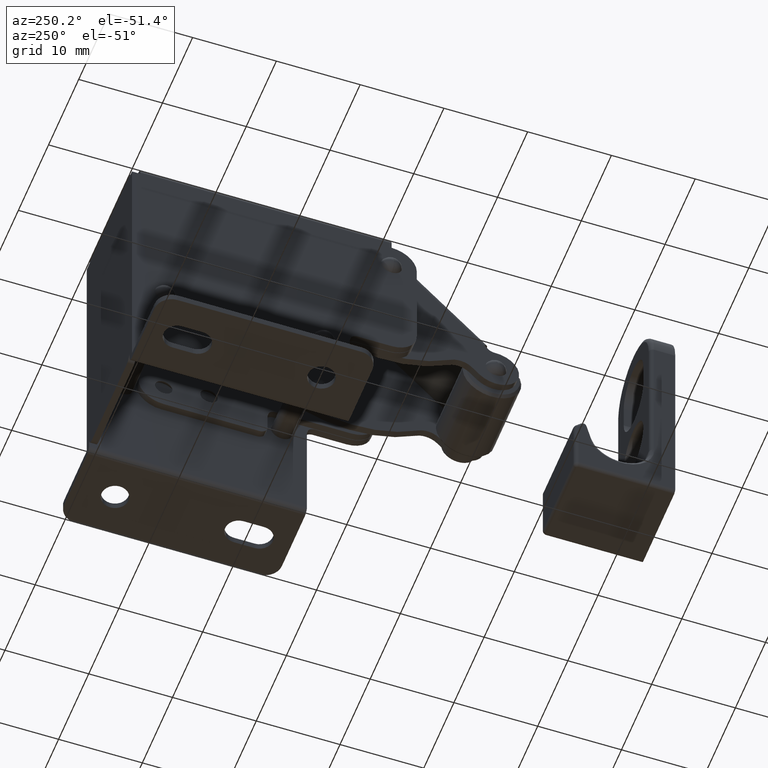
[diagram: clean part render]
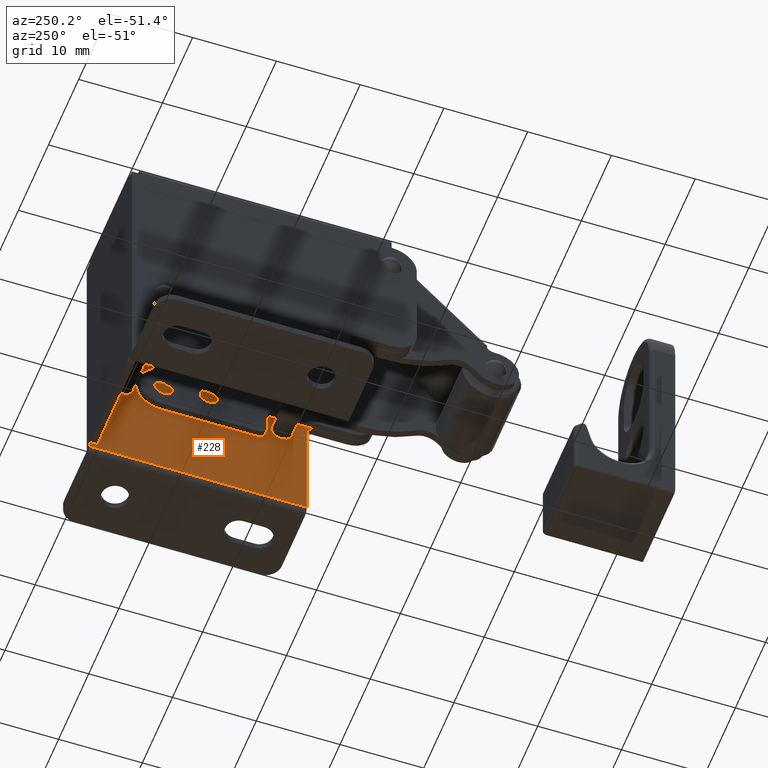
[diagram: same view with one face highlighted and labeled with its STEP entity id]
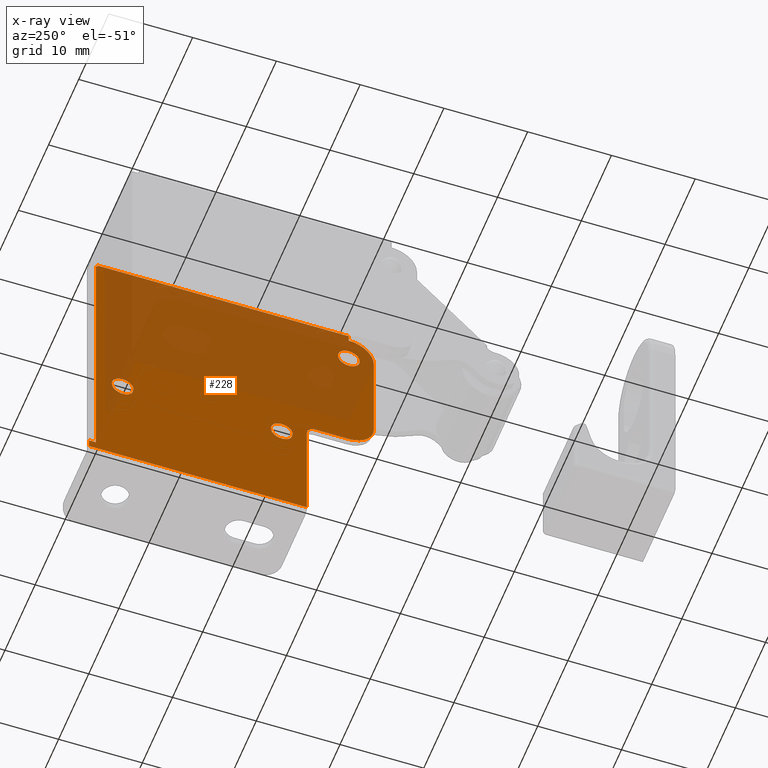
[diagram: x-ray of the same camera — body ghosted, the highlighted face saturated]
A machine part, auxiliary view. The second image highlights one B-rep face of the part: STEP entity #228.
The next image is the same camera in x-ray: the body ghosted, the highlighted face saturated — about 51% of this face is hidden behind the body in this view.
In plain terms, the highlighted planar face has unit normal (1, 0, 0).
Its self-contained STEP definition (entity closure, byte-faithful):
#228=ADVANCED_FACE('',(#567,#568,#569,#570),#566,.F.);
#566=PLANE('',#3448);
#567=FACE_OUTER_BOUND('',#3449,.T.);
#568=FACE_BOUND('',#3450,.T.);
#569=FACE_BOUND('',#3451,.T.);
#570=FACE_BOUND('',#3452,.T.);
#3445=CARTESIAN_POINT('',(6.70000000000E+00,-6.40000000000E+00,7.29000000000E+00));
#3446=DIRECTION('',(1.00000000000E+00,-0.00000000000E+00,0.00000000000E+00));
#3447=DIRECTION('',(0.00000000000E+00,0.00000000000E+00,-1.00000000000E+00));
#3448=AXIS2_PLACEMENT_3D('',#3445,#3446,#3447);
#3449=EDGE_LOOP('',(#5110,#5111,#5112,#5113,#5114,#5115,#5116,#5117,#5118,#5119,#5120,#5121,#5122,#5123));
#3450=EDGE_LOOP('',(#5124,#5125));
#3451=EDGE_LOOP('',(#5126,#5127));
#3452=EDGE_LOOP('',(#5128,#5129));
#5110=ORIENTED_EDGE('',*,*,#6554,.F.);
#5111=ORIENTED_EDGE('',*,*,#6555,.F.);
#5112=ORIENTED_EDGE('',*,*,#6556,.T.);
#5113=ORIENTED_EDGE('',*,*,#6557,.T.);
#5114=ORIENTED_EDGE('',*,*,#6558,.T.);
#5115=ORIENTED_EDGE('',*,*,#6559,.T.);
#5116=ORIENTED_EDGE('',*,*,#6560,.T.);
#5117=ORIENTED_EDGE('',*,*,#6561,.T.);
#5118=ORIENTED_EDGE('',*,*,#6562,.T.);
#5119=ORIENTED_EDGE('',*,*,#6563,.F.);
#5120=ORIENTED_EDGE('',*,*,#6564,.F.);
#5121=ORIENTED_EDGE('',*,*,#6565,.F.);
#5122=ORIENTED_EDGE('',*,*,#6566,.T.);
#5123=ORIENTED_EDGE('',*,*,#6567,.F.);
#5124=ORIENTED_EDGE('',*,*,#6568,.T.);
#5125=ORIENTED_EDGE('',*,*,#6569,.T.);
#5126=ORIENTED_EDGE('',*,*,#6570,.T.);
#5127=ORIENTED_EDGE('',*,*,#6571,.T.);
#5128=ORIENTED_EDGE('',*,*,#6572,.T.);
#5129=ORIENTED_EDGE('',*,*,#6573,.T.);
#6554=EDGE_CURVE('',#7576,#7577,#7578,.T.);
#6555=EDGE_CURVE('',#7584,#7576,#7585,.T.);
#6556=EDGE_CURVE('',#7584,#7591,#7592,.T.);
#6557=EDGE_CURVE('',#7591,#7598,#7599,.T.);
#6558=EDGE_CURVE('',#7598,#7605,#7606,.T.);
#6559=EDGE_CURVE('',#7605,#7612,#7613,.T.);
#6560=EDGE_CURVE('',#7612,#7619,#7620,.T.);
#6561=EDGE_CURVE('',#7619,#7626,#7627,.T.);
#6562=EDGE_CURVE('',#7626,#7633,#7634,.T.);
#6563=EDGE_CURVE('',#7640,#7633,#7641,.T.);
#6564=EDGE_CURVE('',#7647,#7640,#7648,.T.);
#6565=EDGE_CURVE('',#7654,#7647,#7655,.T.);
#6566=EDGE_CURVE('',#7654,#7661,#7662,.T.);
#6567=EDGE_CURVE('',#7577,#7661,#7668,.T.);
#6568=EDGE_CURVE('',#7674,#7675,#7676,.T.);
#6569=EDGE_CURVE('',#7675,#7674,#7682,.T.);
#6570=EDGE_CURVE('',#7688,#7689,#7690,.T.);
#6571=EDGE_CURVE('',#7689,#7688,#7696,.T.);
#6572=EDGE_CURVE('',#7702,#7703,#7704,.T.);
#6573=EDGE_CURVE('',#7703,#7702,#7710,.T.);
#7576=VERTEX_POINT('',#12251);
#7577=VERTEX_POINT('',#12252);
#7578=LINE('',#12253,#12254);
#7584=VERTEX_POINT('',#12256);
#7585=LINE('',#12257,#12258);
#7591=VERTEX_POINT('',#12260);
#7592=LINE('',#12261,#12262);
#7598=VERTEX_POINT('',#12264);
#7599=LINE('',#12265,#12266);
#7605=VERTEX_POINT('',#12268);
#7606=LINE('',#12269,#12270);
#7612=VERTEX_POINT('',#12272);
#7613=LINE('',#12273,#12274);
#7619=VERTEX_POINT('',#12276);
#7620=CIRCLE('',#12280,1.00000000000E+00);
#7626=VERTEX_POINT('',#12281);
#7627=LINE('',#12282,#12283);
#7633=VERTEX_POINT('',#12285);
#7634=CIRCLE('',#12289,3.00000000000E+00);
#7640=VERTEX_POINT('',#12290);
#7641=LINE('',#12291,#12292);
#7647=VERTEX_POINT('',#12294);
#7648=CIRCLE('',#12298,3.00000000000E+00);
#7654=VERTEX_POINT('',#12299);
#7655=LINE('',#12300,#12301);
#7661=VERTEX_POINT('',#12303);
#7662=LINE('',#12304,#12305);
#7668=LINE('',#12307,#12308);
#7674=VERTEX_POINT('',#12310);
#7675=VERTEX_POINT('',#12311);
#7676=CIRCLE('',#12315,1.30000000000E+00);
#7682=CIRCLE('',#12319,1.30000000000E+00);
#7688=VERTEX_POINT('',#12320);
#7689=VERTEX_POINT('',#12321);
#7690=CIRCLE('',#12325,1.30000000000E+00);
#7696=CIRCLE('',#12329,1.30000000000E+00);
#7702=VERTEX_POINT('',#12330);
#7703=VERTEX_POINT('',#12331);
#7704=CIRCLE('',#12335,1.30000000000E+00);
#7710=CIRCLE('',#12339,1.30000000000E+00);
#12251=CARTESIAN_POINT('',(6.70000000000E+00,3.02000000000E+01,3.80000000000E+00));
#12252=CARTESIAN_POINT('',(6.70000000000E+00,3.00000000000E+01,3.80000000000E+00));
#12253=CARTESIAN_POINT('',(6.70000000000E+00,3.02000000000E+01,3.80000000000E+00));
#12254=VECTOR('',#12255,2.00000000000E-01);
#12255=DIRECTION('',(0.00000000000E+00,-1.00000000000E+00,0.00000000000E+00));
#12256=CARTESIAN_POINT('',(6.70000000000E+00,3.02000000000E+01,-2.79000000000E+01));
#12257=CARTESIAN_POINT('',(6.70000000000E+00,3.02000000000E+01,-2.79000000000E+01));
#12258=VECTOR('',#12259,3.17000000000E+01);
#12259=DIRECTION('',(0.00000000000E+00,0.00000000000E+00,1.00000000000E+00));
#12260=CARTESIAN_POINT('',(6.70000000000E+00,3.10000000000E+01,-2.79000000000E+01));
#12261=CARTESIAN_POINT('',(6.70000000000E+00,3.02000000000E+01,-2.79000000000E+01));
#12262=VECTOR('',#12263,8.00000000000E-01);
#12263=DIRECTION('',(0.00000000000E+00,1.00000000000E+00,0.00000000000E+00));
#12264=CARTESIAN_POINT('',(6.70000000000E+00,3.10000000000E+01,-2.89000000000E+01));
#12265=CARTESIAN_POINT('',(6.70000000000E+00,3.10000000000E+01,-2.79000000000E+01));
#12266=VECTOR('',#12267,1.00000000000E+00);
#12267=DIRECTION('',(0.00000000000E+00,0.00000000000E+00,-1.00000000000E+00));
#12268=CARTESIAN_POINT('',(6.70000000000E+00,5.00000000000E+00,-2.89000000000E+01));
#12269=CARTESIAN_POINT('',(6.70000000000E+00,3.10000000000E+01,-2.89000000000E+01));
#12270=VECTOR('',#12271,2.60000000000E+01);
#12271=DIRECTION('',(0.00000000000E+00,-1.00000000000E+00,0.00000000000E+00));
#12272=CARTESIAN_POINT('',(6.70000000000E+00,5.00000000000E+00,-1.55000000000E+01));
#12273=CARTESIAN_POINT('',(6.70000000000E+00,5.00000000000E+00,-2.89000000000E+01));
#12274=VECTOR('',#12275,1.34000000000E+01);
#12275=DIRECTION('',(0.00000000000E+00,0.00000000000E+00,1.00000000000E+00));
#12276=CARTESIAN_POINT('',(6.70000000000E+00,4.00000000000E+00,-1.45000000000E+01));
#12277=CARTESIAN_POINT('',(6.70000000000E+00,4.00000000000E+00,-1.55000000000E+01));
#12278=DIRECTION('',(1.00000000000E+00,0.00000000000E+00,0.00000000000E+00));
#12279=DIRECTION('',(-0.00000000000E+00,-0.00000000000E+00,1.00000000000E+00));
#12280=AXIS2_PLACEMENT_3D('',#12277,#12278,#12279);
#12281=CARTESIAN_POINT('',(6.70000000000E+00,0.00000000000E+00,-1.45000000000E+01));
#12282=CARTESIAN_POINT('',(6.70000000000E+00,4.00000000000E+00,-1.45000000000E+01));
#12283=VECTOR('',#12284,4.00000000000E+00);
#12284=DIRECTION('',(0.00000000000E+00,-1.00000000000E+00,0.00000000000E+00));
#12285=CARTESIAN_POINT('',(6.70000000000E+00,-3.00000000000E+00,-1.15000000000E+01));
#12286=CARTESIAN_POINT('',(6.70000000000E+00,-2.60208521397E-15,-1.15000000000E+01));
#12287=DIRECTION('',(-1.00000000000E+00,0.00000000000E+00,-0.00000000000E+00));
#12288=DIRECTION('',(-0.00000000000E+00,-0.00000000000E+00,1.00000000000E+00));
#12289=AXIS2_PLACEMENT_3D('',#12286,#12287,#12288);
#12290=CARTESIAN_POINT('',(6.70000000000E+00,-3.00000000000E+00,2.00000000000E-01));
#12291=CARTESIAN_POINT('',(6.70000000000E+00,-3.00000000000E+00,2.00000000000E-01));
#12292=VECTOR('',#12293,1.17000000000E+01);
#12293=DIRECTION('',(0.00000000000E+00,0.00000000000E+00,-1.00000000000E+00));
#12294=CARTESIAN_POINT('',(6.70000000000E+00,5.11590769747E-13,3.20000000000E+00));
#12295=CARTESIAN_POINT('',(6.70000000000E+00,0.00000000000E+00,2.00000000000E-01));
#12296=DIRECTION('',(1.00000000000E+00,0.00000000000E+00,0.00000000000E+00));
#12297=DIRECTION('',(-0.00000000000E+00,1.70530256582E-13,1.00000000000E+00));
#12298=AXIS2_PLACEMENT_3D('',#12295,#12296,#12297);
#12299=CARTESIAN_POINT('',(6.70000000000E+00,1.22124532709E-12,4.00000000000E+00));
#12300=CARTESIAN_POINT('',(6.70000000000E+00,1.22124532773E-12,4.00000000000E+00));
#12301=VECTOR('',#12302,8.00000000000E-01);
#12302=DIRECTION('',(0.00000000000E+00,-8.17124146124E-13,-1.00000000000E+00));
#12303=CARTESIAN_POINT('',(6.70000000000E+00,3.00000000000E+01,4.00000000000E+00));
#12304=CARTESIAN_POINT('',(6.70000000000E+00,1.13686837722E-12,4.00000000000E+00));
#12305=VECTOR('',#12306,3.00000000000E+01);
#12306=DIRECTION('',(0.00000000000E+00,1.00000000000E+00,0.00000000000E+00));
#12307=CARTESIAN_POINT('',(6.70000000000E+00,3.00000000000E+01,3.80000000000E+00));
#12308=VECTOR('',#12309,2.00000000000E-01);
#12309=DIRECTION('',(0.00000000000E+00,0.00000000000E+00,1.00000000000E+00));
#12310=CARTESIAN_POINT('',(6.70000000000E+00,8.00000000000E+00,-1.78000000000E+01));
#12311=CARTESIAN_POINT('',(6.70000000000E+00,8.00000000000E+00,-1.52000000000E+01));
#12312=CARTESIAN_POINT('',(6.70000000000E+00,8.00000000000E+00,-1.65000000000E+01));
#12313=DIRECTION('',(1.00000000000E+00,0.00000000000E+00,0.00000000000E+00));
#12314=DIRECTION('',(0.00000000000E+00,-1.22460635382E-16,-1.00000000000E+00));
#12315=AXIS2_PLACEMENT_3D('',#12312,#12313,#12314);
#12316=CARTESIAN_POINT('',(6.70000000000E+00,8.00000000000E+00,-1.65000000000E+01));
#12317=DIRECTION('',(1.00000000000E+00,0.00000000000E+00,0.00000000000E+00));
#12318=DIRECTION('',(0.00000000000E+00,-1.22460635382E-16,-1.00000000000E+00));
#12319=AXIS2_PLACEMENT_3D('',#12316,#12317,#12318);
#12320=CARTESIAN_POINT('',(6.70000000000E+00,0.00000000000E+00,-1.30000000000E+00));
#12321=CARTESIAN_POINT('',(6.70000000000E+00,7.40148683083E-17,1.30000000000E+00));
#12322=CARTESIAN_POINT('',(6.70000000000E+00,0.00000000000E+00,0.00000000000E+00));
#12323=DIRECTION('',(1.00000000000E+00,0.00000000000E+00,0.00000000000E+00));
#12324=DIRECTION('',(0.00000000000E+00,-1.22460635382E-16,-1.00000000000E+00));
#12325=AXIS2_PLACEMENT_3D('',#12322,#12323,#12324);
#12326=CARTESIAN_POINT('',(6.70000000000E+00,0.00000000000E+00,0.00000000000E+00));
#12327=DIRECTION('',(1.00000000000E+00,0.00000000000E+00,0.00000000000E+00));
#12328=DIRECTION('',(0.00000000000E+00,-1.22460635382E-16,-1.00000000000E+00));
#12329=AXIS2_PLACEMENT_3D('',#12326,#12327,#12328);
#12330=CARTESIAN_POINT('',(6.70000000000E+00,2.70000000000E+01,-1.78000000000E+01));
#12331=CARTESIAN_POINT('',(6.70000000000E+00,2.70000000000E+01,-1.52000000000E+01));
#12332=CARTESIAN_POINT('',(6.70000000000E+00,2.70000000000E+01,-1.65000000000E+01));
#12333=DIRECTION('',(1.00000000000E+00,0.00000000000E+00,0.00000000000E+00));
#12334=DIRECTION('',(0.00000000000E+00,-1.22460635382E-16,-1.00000000000E+00));
#12335=AXIS2_PLACEMENT_3D('',#12332,#12333,#12334);
#12336=CARTESIAN_POINT('',(6.70000000000E+00,2.70000000000E+01,-1.65000000000E+01));
#12337=DIRECTION('',(1.00000000000E+00,0.00000000000E+00,0.00000000000E+00));
#12338=DIRECTION('',(0.00000000000E+00,-1.22460635382E-16,-1.00000000000E+00));
#12339=AXIS2_PLACEMENT_3D('',#12336,#12337,#12338);